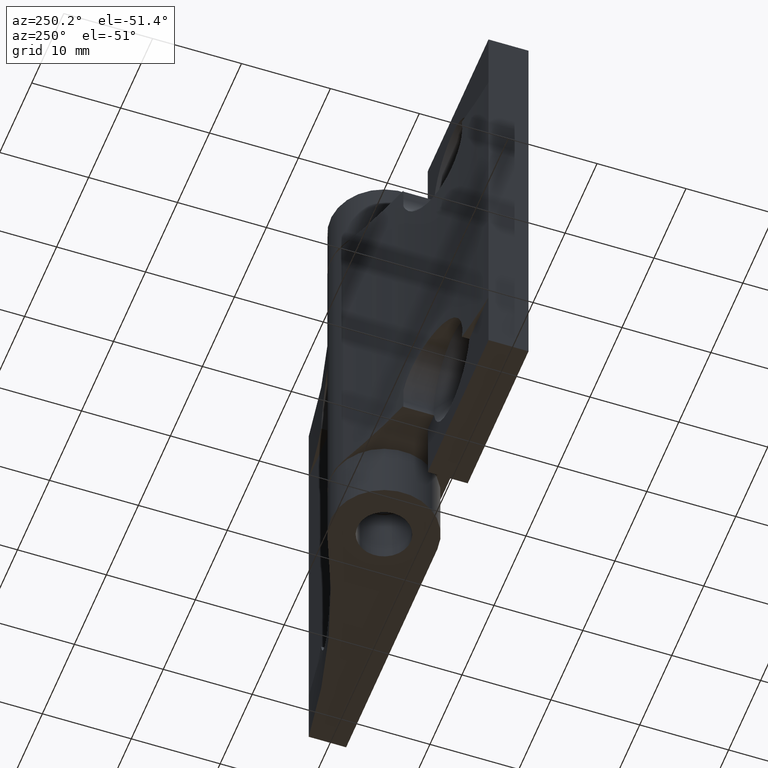
[diagram: clean part render]
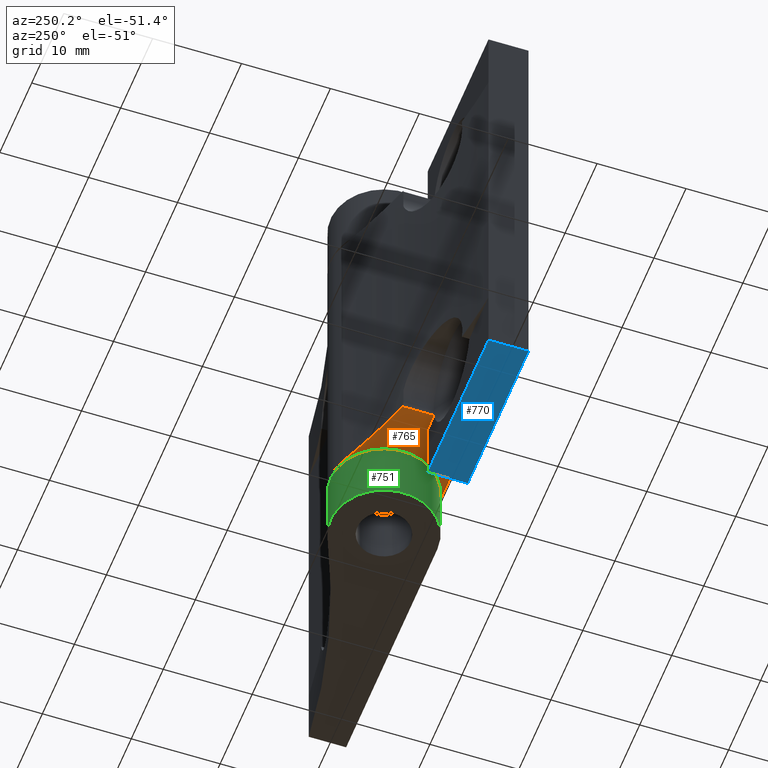
[diagram: same view with three faces highlighted in distinct colors, each labeled with its STEP entity id]
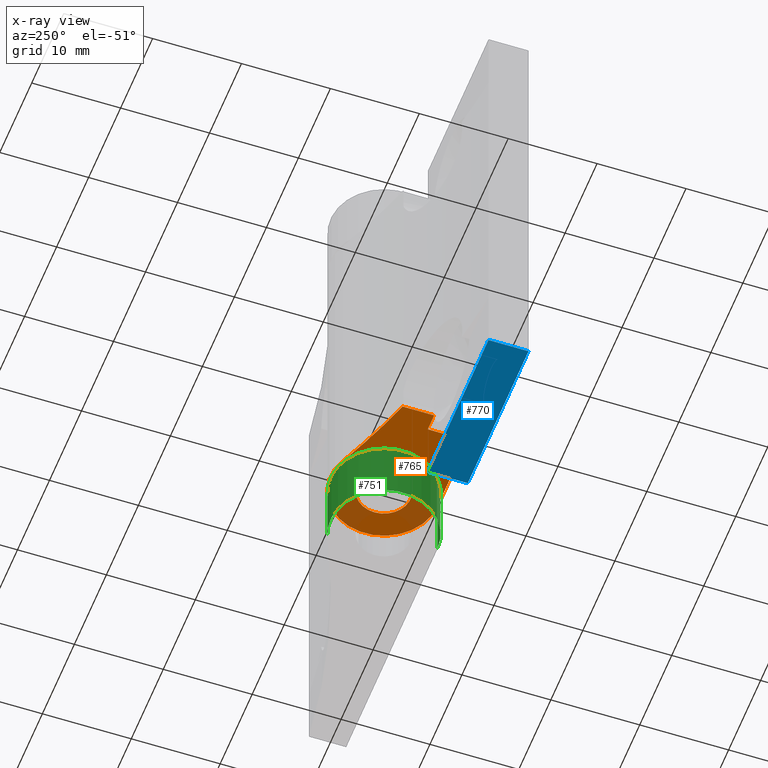
[diagram: x-ray of the same camera — body ghosted, the three highlighted faces saturated]
A machine part, auxiliary view with three faces highlighted in distinct colors.
The next image is the same camera in x-ray (body ghosted, the three faces saturated) — at least one of them is partly hidden behind the body in this view.
Their STEP definitions:

[orange] entity #765 — the highlighted planar face has unit normal (0, 0, 1).
#43=FACE_BOUND('',#161,.T.);
#65=PLANE('',#842);
#103=FACE_OUTER_BOUND('',#160,.T.);
#160=EDGE_LOOP('',(#645,#646,#647,#648,#649,#650,#651));
#161=EDGE_LOOP('',(#652));
#211=CIRCLE('',#843,85.7362212547211);
#212=CIRCLE('',#844,6.);
#213=CIRCLE('',#845,3.);
#253=LINE('',#1278,#313);
#255=LINE('',#1284,#315);
#263=LINE('',#1335,#323);
#264=LINE('',#1337,#324);
#265=LINE('',#1338,#325);
#313=VECTOR('',#997,0.121601728927749);
#315=VECTOR('',#1003,3.5);
#323=VECTOR('',#1035,9.5);
#324=VECTOR('',#1036,4.49999999999999);
#325=VECTOR('',#1037,1.99931822407349);
#384=VERTEX_POINT('',#1276);
#385=VERTEX_POINT('',#1277);
#387=VERTEX_POINT('',#1283);
#396=VERTEX_POINT('',#1330);
#397=VERTEX_POINT('',#1332);
#398=VERTEX_POINT('',#1334);
#399=VERTEX_POINT('',#1336);
#400=VERTEX_POINT('',#1339);
#470=EDGE_CURVE('',#384,#385,#253,.T.);
#473=EDGE_CURVE('',#387,#384,#255,.T.);
#487=EDGE_CURVE('',#396,#385,#211,.T.);
#488=EDGE_CURVE('',#397,#396,#212,.T.);
#489=EDGE_CURVE('',#398,#397,#263,.T.);
#490=EDGE_CURVE('',#399,#398,#264,.T.);
#491=EDGE_CURVE('',#387,#399,#265,.T.);
#492=EDGE_CURVE('',#400,#400,#213,.T.);
#645=ORIENTED_EDGE('',*,*,#473,.T.);
#646=ORIENTED_EDGE('',*,*,#470,.T.);
#647=ORIENTED_EDGE('',*,*,#487,.F.);
#648=ORIENTED_EDGE('',*,*,#488,.F.);
#649=ORIENTED_EDGE('',*,*,#489,.F.);
#650=ORIENTED_EDGE('',*,*,#490,.F.);
#651=ORIENTED_EDGE('',*,*,#491,.F.);
#652=ORIENTED_EDGE('',*,*,#492,.T.);
#765=ADVANCED_FACE('',(#103,#43),#65,.F.);
#842=AXIS2_PLACEMENT_3D('',#1329,#1029,#1030);
#843=AXIS2_PLACEMENT_3D('',#1331,#1031,#1032);
#844=AXIS2_PLACEMENT_3D('',#1333,#1033,#1034);
#845=AXIS2_PLACEMENT_3D('',#1340,#1038,#1039);
#997=DIRECTION('',(1.,2.62947558463865E-16,0.));
#1003=DIRECTION('',(-2.62947558463865E-16,1.,0.));
#1029=DIRECTION('center_axis',(0.,0.,-1.));
#1030=DIRECTION('ref_axis',(1.,0.,0.));
#1031=DIRECTION('center_axis',(0.,0.,1.));
#1032=DIRECTION('ref_axis',(0.407472637184468,0.913217416580485,0.));
#1033=DIRECTION('center_axis',(0.,0.,-1.));
#1034=DIRECTION('ref_axis',(0.407472637184468,0.913217416580485,0.));
#1035=DIRECTION('',(-1.,5.84327907697469E-17,0.));
#1036=DIRECTION('',(0.,-1.,0.));
#1037=DIRECTION('',(-1.,-2.77555756156302E-16,0.));
#1038=DIRECTION('center_axis',(0.,0.,-1.));
#1039=DIRECTION('ref_axis',(1.,-2.92163953848725E-17,0.));
#1276=CARTESIAN_POINT('',(-2.75068177592606,5.75,18.25));
#1277=CARTESIAN_POINT('',(-2.62908004699831,5.75,18.25));
#1278=CARTESIAN_POINT('',(-8.75,5.74999999999999,18.25));
#1283=CARTESIAN_POINT('',(-2.75068177592606,2.25,18.25));
#1284=CARTESIAN_POINT('',(-2.75068177592606,3.99999999999999,18.25));
#1329=CARTESIAN_POINT('Origin',(-20.2499999999995,9.75000000000001,18.25));
#1330=CARTESIAN_POINT('',(-11.8051641768927,9.22930449948293,18.25));
#1331=CARTESIAN_POINT('Origin',(23.1299999999995,87.5251149810922,18.25));
#1332=CARTESIAN_POINT('',(-14.2499999999995,-2.25,18.25));
#1333=CARTESIAN_POINT('Origin',(-14.2499999999995,3.75000000000001,18.25));
#1334=CARTESIAN_POINT('',(-4.74999999999955,-2.25,18.25));
#1335=CARTESIAN_POINT('',(-17.2499999999995,-2.25,18.25));
#1336=CARTESIAN_POINT('',(-4.74999999999955,2.24999999999999,18.25));
#1337=CARTESIAN_POINT('',(-4.74999999999955,9.75000000000001,18.25));
#1338=CARTESIAN_POINT('',(-4.74999999999955,2.24999999999999,18.25));
#1339=CARTESIAN_POINT('',(-11.2499999999995,3.75000000000001,18.25));
#1340=CARTESIAN_POINT('Origin',(-14.2499999999995,3.75000000000001,18.25));

[blue] entity #770 — the highlighted planar face has unit normal (-0, -0, -1).
#67=PLANE('',#853);
#108=FACE_OUTER_BOUND('',#168,.T.);
#168=EDGE_LOOP('',(#673,#674,#675,#676));
#269=LINE('',#1356,#329);
#271=LINE('',#1360,#331);
#272=LINE('',#1362,#332);
#273=LINE('',#1363,#333);
#329=VECTOR('',#1057,18.9999999999991);
#331=VECTOR('',#1061,4.49999999999999);
#332=VECTOR('',#1062,18.9999999999991);
#333=VECTOR('',#1063,4.5);
#404=VERTEX_POINT('',#1353);
#405=VERTEX_POINT('',#1355);
#406=VERTEX_POINT('',#1359);
#407=VERTEX_POINT('',#1361);
#499=EDGE_CURVE('',#405,#404,#269,.T.);
#501=EDGE_CURVE('',#404,#406,#271,.T.);
#502=EDGE_CURVE('',#406,#407,#272,.T.);
#503=EDGE_CURVE('',#407,#405,#273,.T.);
#673=ORIENTED_EDGE('',*,*,#499,.T.);
#674=ORIENTED_EDGE('',*,*,#501,.T.);
#675=ORIENTED_EDGE('',*,*,#502,.T.);
#676=ORIENTED_EDGE('',*,*,#503,.T.);
#770=ADVANCED_FACE('',(#108),#67,.T.);
#853=AXIS2_PLACEMENT_3D('',#1358,#1059,#1060);
#1057=DIRECTION('',(-1.,-2.77555756156302E-16,0.));
#1059=DIRECTION('center_axis',(0.,0.,1.));
#1060=DIRECTION('ref_axis',(1.,0.,0.));
#1061=DIRECTION('',(0.,-1.,0.));
#1062=DIRECTION('',(1.,-5.84327907697469E-17,0.));
#1063=DIRECTION('',(-4.93432455388958E-16,1.,0.));
#1353=CARTESIAN_POINT('',(-4.74999999999955,2.24999999999999,25.5));
#1355=CARTESIAN_POINT('',(14.2499999999995,2.25,25.5));
#1356=CARTESIAN_POINT('',(5.72030200828968,2.25,25.5));
#1358=CARTESIAN_POINT('Origin',(-2.80939598342019,1.58081301749489,25.5));
#1359=CARTESIAN_POINT('',(-4.74999999999955,-2.25,25.5));
#1360=CARTESIAN_POINT('',(-4.74999999999955,5.66540650874745,25.5));
#1361=CARTESIAN_POINT('',(14.2499999999995,-2.25,25.5));
#1362=CARTESIAN_POINT('',(-14.2499999999995,-2.25,25.5));
#1363=CARTESIAN_POINT('',(14.2499999999995,-2.25,25.5));

[green] entity #751 — the highlighted cylindrical surface (partial cylindrical patch) has radius 6 mm, axis along (0, 0, 1).
#89=FACE_OUTER_BOUND('',#140,.T.);
#140=EDGE_LOOP('',(#581,#582,#583,#584));
#188=CIRCLE('',#794,6.);
#200=CIRCLE('',#817,6.);
#238=LINE('',#1202,#298);
#243=LINE('',#1224,#303);
#298=VECTOR('',#934,7.);
#303=VECTOR('',#961,7.);
#357=VERTEX_POINT('',#1169);
#358=VERTEX_POINT('',#1171);
#368=VERTEX_POINT('',#1200);
#374=VERTEX_POINT('',#1222);
#430=EDGE_CURVE('',#358,#357,#188,.T.);
#445=EDGE_CURVE('',#368,#357,#238,.T.);
#454=EDGE_CURVE('',#374,#368,#200,.T.);
#455=EDGE_CURVE('',#374,#358,#243,.T.);
#581=ORIENTED_EDGE('',*,*,#430,.T.);
#582=ORIENTED_EDGE('',*,*,#445,.F.);
#583=ORIENTED_EDGE('',*,*,#454,.F.);
#584=ORIENTED_EDGE('',*,*,#455,.T.);
#728=CYLINDRICAL_SURFACE('',#816,6.);
#751=ADVANCED_FACE('',(#89),#728,.T.);
#794=AXIS2_PLACEMENT_3D('',#1172,#901,#902);
#816=AXIS2_PLACEMENT_3D('',#1221,#957,#958);
#817=AXIS2_PLACEMENT_3D('',#1223,#959,#960);
#901=DIRECTION('center_axis',(0.,0.,-1.));
#902=DIRECTION('ref_axis',(0.422258197441601,0.906475600715965,0.));
#934=DIRECTION('',(0.,0.,1.));
#957=DIRECTION('center_axis',(0.,0.,1.));
#958=DIRECTION('ref_axis',(0.422258197441601,0.906475600715965,0.));
#959=DIRECTION('center_axis',(0.,0.,-1.));
#960=DIRECTION('ref_axis',(0.422258197441601,0.906475600715965,0.));
#961=DIRECTION('',(0.,0.,1.));
#1169=CARTESIAN_POINT('',(-11.7164508153499,9.3388536042958,-18.5));
#1171=CARTESIAN_POINT('',(-14.2499999999995,-2.1,-18.5));
#1172=CARTESIAN_POINT('Origin',(-14.2499999999995,3.90000000000001,-18.5));
#1200=CARTESIAN_POINT('',(-11.7164508153499,9.3388536042958,-25.5));
#1202=CARTESIAN_POINT('',(-11.7164508153499,9.3388536042958,0.));
#1221=CARTESIAN_POINT('Origin',(-14.2499999999995,3.90000000000001,0.));
#1222=CARTESIAN_POINT('',(-14.2499999999995,-2.1,-25.5));
#1223=CARTESIAN_POINT('Origin',(-14.2499999999995,3.90000000000001,-25.5));
#1224=CARTESIAN_POINT('',(-14.2499999999995,-2.1,0.));